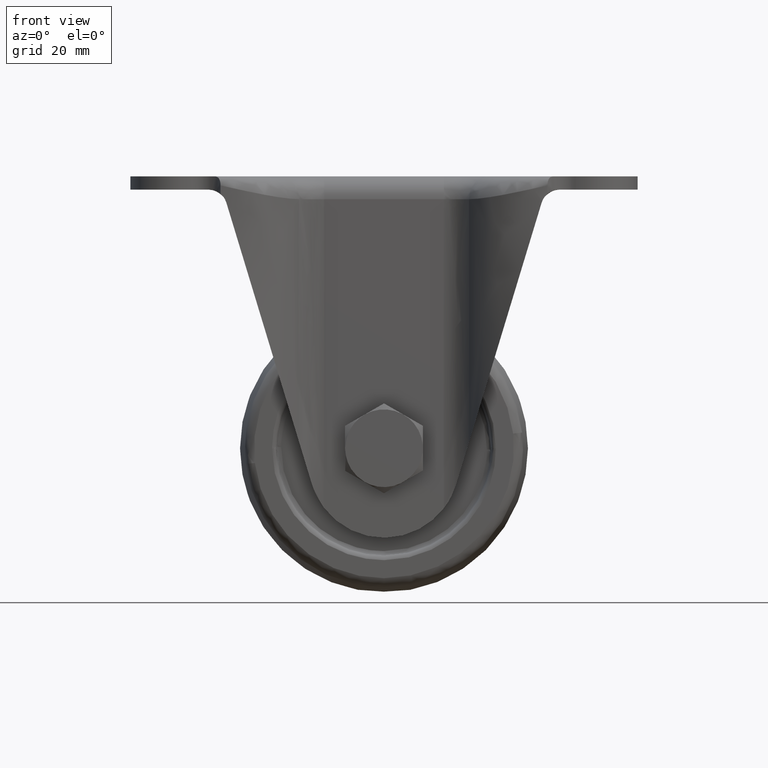
[diagram: clean part render]
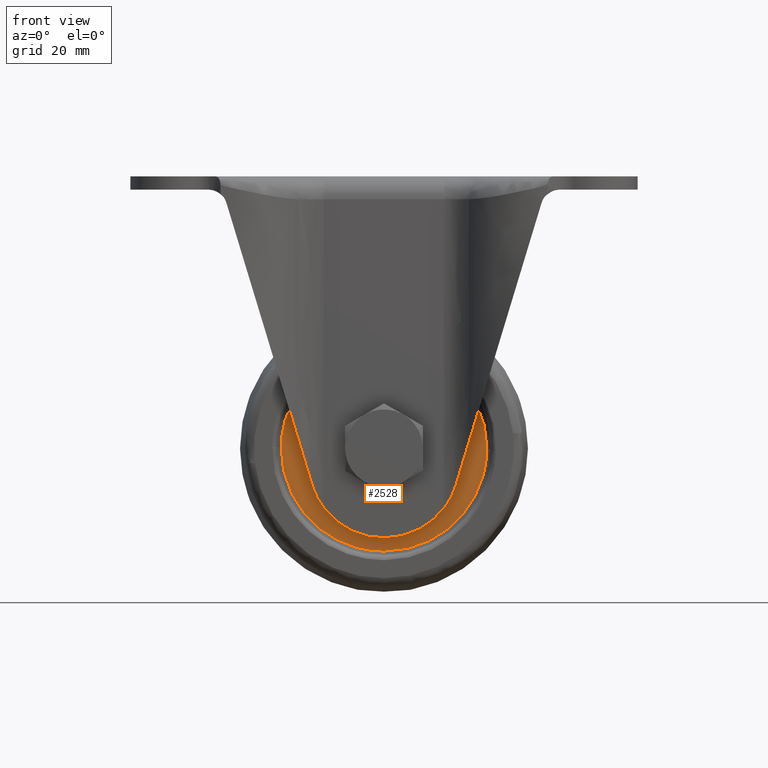
[diagram: same view with one face highlighted and labeled with its STEP entity id]
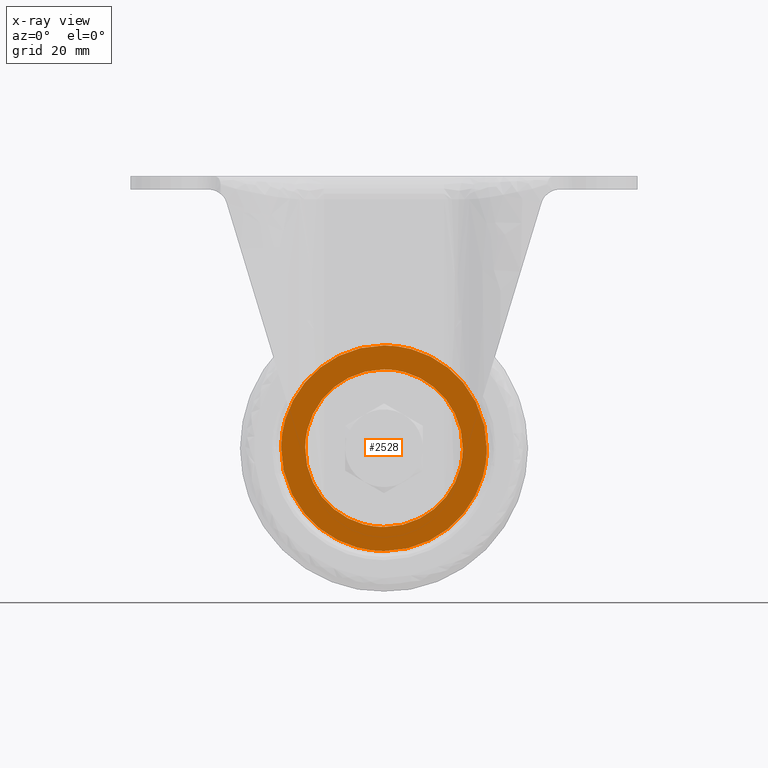
[diagram: x-ray of the same camera — body ghosted, the highlighted face saturated]
A machine part, front view. The second image highlights one B-rep face of the part: STEP entity #2528.
The next image is the same camera in x-ray: the body ghosted, the highlighted face saturated — about 0% of this face is hidden behind the body in this view.
In plain terms, the highlighted face is a freeform B-spline surface patch.
Its self-contained STEP definition (entity closure, byte-faithful):
#2318=CARTESIAN_POINT('',(22.498257505779801,-15.500000000000000,-59.782702325192602));
#2319=VERTEX_POINT('',#2318);
#2320=CARTESIAN_POINT('',(0.0,-15.500000000000000,-36.999932000000193));
#2321=VERTEX_POINT('',#2320);
#2322=CARTESIAN_POINT('',(22.498257505779797,-15.499999999999996,-59.782702325192595));
#2323=CARTESIAN_POINT('',(22.500034013840352,-15.500000000000000,-59.641339743821291));
#2324=CARTESIAN_POINT('',(22.500034013796729,-15.500000000000000,-59.499966000173487));
#2325=CARTESIAN_POINT('',(22.500034006854964,-15.500000000000005,-36.999932000086346));
#2326=CARTESIAN_POINT('',(0.0,-15.500000000000000,-36.999932000000193));
#2334=(BOUNDED_CURVE()B_SPLINE_CURVE(2,(#2322,#2323,#2324,#2325,#2326),.UNSPECIFIED.,.F.,.U.)B_SPLINE_CURVE_WITH_KNOTS((3,2,3),(0.247784295918623,0.250000000000000,0.500000000000000),.UNSPECIFIED.)CURVE()GEOMETRIC_REPRESENTATION_ITEM()RATIONAL_B_SPLINE_CURVE((0.994854295636865,0.997404141198670,1.0,0.707106781186547,1.0))REPRESENTATION_ITEM(''));
#2335=EDGE_CURVE('',#2319,#2321,#2334,.T.);
#2353=CARTESIAN_POINT('',(-22.498257505779790,-15.500000000000000,-59.217229674807598));
#2354=VERTEX_POINT('',#2353);
#2368=CARTESIAN_POINT('',(0.0,-15.500000000000000,-36.999932000000193));
#2369=CARTESIAN_POINT('',(-22.219052004869521,-15.500000000000005,-36.999931999912960));
#2370=CARTESIAN_POINT('',(-22.498257505779794,-15.500000000000004,-59.217229674807605));
#2378=(BOUNDED_CURVE()B_SPLINE_CURVE(2,(#2368,#2369,#2370),.UNSPECIFIED.,.F.,.U.)B_SPLINE_CURVE_WITH_KNOTS((3,3),(0.500000000000000,0.747784295918623),.UNSPECIFIED.)CURVE()GEOMETRIC_REPRESENTATION_ITEM()RATIONAL_B_SPLINE_CURVE((1.0,0.709702639987878,0.994854295636866))REPRESENTATION_ITEM(''));
#2379=EDGE_CURVE('',#2321,#2354,#2378,.T.);
#2413=CARTESIAN_POINT('',(0.0,-15.500000000000000,-82.0));
#2414=VERTEX_POINT('',#2413);
#2415=CARTESIAN_POINT('',(0.0,-15.500000000000000,-82.0));
#2416=CARTESIAN_POINT('',(22.219052004869521,-15.500000000000005,-82.000000000087212));
#2417=CARTESIAN_POINT('',(22.498257505779794,-15.500000000000004,-59.782702325192602));
#2425=(BOUNDED_CURVE()B_SPLINE_CURVE(2,(#2415,#2416,#2417),.UNSPECIFIED.,.F.,.U.)B_SPLINE_CURVE_WITH_KNOTS((3,3),(0.0,0.247784295918623),.UNSPECIFIED.)CURVE()GEOMETRIC_REPRESENTATION_ITEM()RATIONAL_B_SPLINE_CURVE((1.0,0.709702639987878,0.994854295636866))REPRESENTATION_ITEM(''));
#2426=EDGE_CURVE('',#2414,#2319,#2425,.T.);
#2428=CARTESIAN_POINT('',(-22.498257505779790,-15.499999999999998,-59.217229674807598));
#2429=CARTESIAN_POINT('',(-22.500034013840345,-15.500000000000002,-59.358592256178902));
#2430=CARTESIAN_POINT('',(-22.500034013796729,-15.500000000000000,-59.499965999826721));
#2431=CARTESIAN_POINT('',(-22.500034006854964,-15.500000000000005,-81.999999999913840));
#2432=CARTESIAN_POINT('',(0.0,-15.500000000000000,-82.0));
#2440=(BOUNDED_CURVE()B_SPLINE_CURVE(2,(#2428,#2429,#2430,#2431,#2432),.UNSPECIFIED.,.F.,.U.)B_SPLINE_CURVE_WITH_KNOTS((3,2,3),(0.747784295918623,0.750000000000000,1.0),.UNSPECIFIED.)CURVE()GEOMETRIC_REPRESENTATION_ITEM()RATIONAL_B_SPLINE_CURVE((0.994854295636865,0.997404141198669,1.0,0.707106781186547,1.0))REPRESENTATION_ITEM(''));
#2441=EDGE_CURVE('',#2354,#2414,#2440,.T.);
#2451=CARTESIAN_POINT('',(-24.745833343395219,-15.500000000000000,-84.247753309381125));
#2452=CARTESIAN_POINT('',(-24.745833343395230,-15.500000000000000,-34.752177483623193));
#2453=CARTESIAN_POINT('',(24.745834550295800,-15.500000000000000,-84.247753309381125));
#2454=CARTESIAN_POINT('',(24.745834550295800,-15.500000000000000,-34.752177483623193));
#2455=B_SPLINE_SURFACE_WITH_KNOTS('',1,1,((#2451,#2453),(#2452,#2454)),.UNSPECIFIED.,.F.,.F.,.U.,(2,2),(2,2),(0.0,49.495575825757939),(0.0,49.491667893691030),.UNSPECIFIED.);
#2456=ORIENTED_EDGE('',*,*,#2426,.T.);
#2457=ORIENTED_EDGE('',*,*,#2335,.T.);
#2458=ORIENTED_EDGE('',*,*,#2379,.T.);
#2459=ORIENTED_EDGE('',*,*,#2441,.T.);
#2460=EDGE_LOOP('',(#2456,#2457,#2458,#2459));
#2461=FACE_OUTER_BOUND('',#2460,.T.);
#2462=CARTESIAN_POINT('',(0.0,-15.500000000000000,-76.749966000000100));
#2463=VERTEX_POINT('',#2462);
#2464=CARTESIAN_POINT('',(17.248638006307011,-15.500000000000000,-59.716730188276067));
#2465=VERTEX_POINT('',#2464);
#2466=CARTESIAN_POINT('',(0.0,-15.500000000000000,-76.749966000000100));
#2467=CARTESIAN_POINT('',(17.034580787437463,-15.500000000000002,-76.749965999961134));
#2468=CARTESIAN_POINT('',(17.248638006307011,-15.499999999999998,-59.716730188276074));
#2476=(BOUNDED_CURVE()B_SPLINE_CURVE(2,(#2466,#2467,#2468),.UNSPECIFIED.,.F.,.U.)B_SPLINE_CURVE_WITH_KNOTS((3,3),(0.0,0.247784295917995),.UNSPECIFIED.)CURVE()GEOMETRIC_REPRESENTATION_ITEM()RATIONAL_B_SPLINE_CURVE((1.0,0.709702639988613,0.994854295635421))REPRESENTATION_ITEM(''));
#2477=EDGE_CURVE('',#2463,#2465,#2476,.T.);
#2478=ORIENTED_EDGE('',*,*,#2477,.F.);
#2479=CARTESIAN_POINT('',(-17.248638006307011,-15.500000000000000,-59.283201811724119));
#2480=VERTEX_POINT('',#2479);
#2481=CARTESIAN_POINT('',(-17.248638006307015,-15.500000000000002,-59.283201811724119));
#2482=CARTESIAN_POINT('',(-17.249999993815031,-15.500000000000002,-59.391579627034645));
#2483=CARTESIAN_POINT('',(-17.249999993834528,-15.500000000000000,-59.499966000077578));
#2484=CARTESIAN_POINT('',(-17.249999996936637,-15.500000000000004,-76.749966000038597));
#2485=CARTESIAN_POINT('',(0.0,-15.500000000000000,-76.749966000000100));
#2493=(BOUNDED_CURVE()B_SPLINE_CURVE(2,(#2481,#2482,#2483,#2484,#2485),.UNSPECIFIED.,.F.,.U.)B_SPLINE_CURVE_WITH_KNOTS((3,2,3),(0.747784295917995,0.750000000000000,1.0),.UNSPECIFIED.)CURVE()GEOMETRIC_REPRESENTATION_ITEM()RATIONAL_B_SPLINE_CURVE((0.994854295635420,0.997404141197934,1.0,0.707106781186548,1.0))REPRESENTATION_ITEM(''));
#2494=EDGE_CURVE('',#2480,#2463,#2493,.T.);
#2495=ORIENTED_EDGE('',*,*,#2494,.F.);
#2496=CARTESIAN_POINT('',(0.0,-15.500000000000000,-42.249966000000100));
#2497=VERTEX_POINT('',#2496);
#2498=CARTESIAN_POINT('',(0.0,-15.500000000000000,-42.249966000000100));
#2499=CARTESIAN_POINT('',(-17.034580787437463,-15.500000000000000,-42.249966000039102));
#2500=CARTESIAN_POINT('',(-17.248638006307015,-15.500000000000002,-59.283201811724119));
#2508=(BOUNDED_CURVE()B_SPLINE_CURVE(2,(#2498,#2499,#2500),.UNSPECIFIED.,.F.,.U.)B_SPLINE_CURVE_WITH_KNOTS((3,3),(0.500000000000000,0.747784295917995),.UNSPECIFIED.)CURVE()GEOMETRIC_REPRESENTATION_ITEM()RATIONAL_B_SPLINE_CURVE((1.0,0.709702639988613,0.994854295635420))REPRESENTATION_ITEM(''));
#2509=EDGE_CURVE('',#2497,#2480,#2508,.T.);
#2510=ORIENTED_EDGE('',*,*,#2509,.F.);
#2511=CARTESIAN_POINT('',(17.248638006307011,-15.499999999999998,-59.716730188276074));
#2512=CARTESIAN_POINT('',(17.249999993815027,-15.500000000000000,-59.608352372965548));
#2513=CARTESIAN_POINT('',(17.249999993834521,-15.500000000000000,-59.499965999922630));
#2514=CARTESIAN_POINT('',(17.249999996936637,-15.500000000000004,-42.249965999961610));
#2515=CARTESIAN_POINT('',(0.0,-15.500000000000000,-42.249966000000100));
#2523=(BOUNDED_CURVE()B_SPLINE_CURVE(2,(#2511,#2512,#2513,#2514,#2515),.UNSPECIFIED.,.F.,.U.)B_SPLINE_CURVE_WITH_KNOTS((3,2,3),(0.247784295917995,0.250000000000000,0.500000000000000),.UNSPECIFIED.)CURVE()GEOMETRIC_REPRESENTATION_ITEM()RATIONAL_B_SPLINE_CURVE((0.994854295635421,0.997404141197934,1.0,0.707106781186548,1.0))REPRESENTATION_ITEM(''));
#2524=EDGE_CURVE('',#2465,#2497,#2523,.T.);
#2525=ORIENTED_EDGE('',*,*,#2524,.F.);
#2526=EDGE_LOOP('',(#2478,#2495,#2510,#2525));
#2527=FACE_BOUND('',#2526,.T.);
#2528=ADVANCED_FACE('',(#2461,#2527),#2455,.F.);